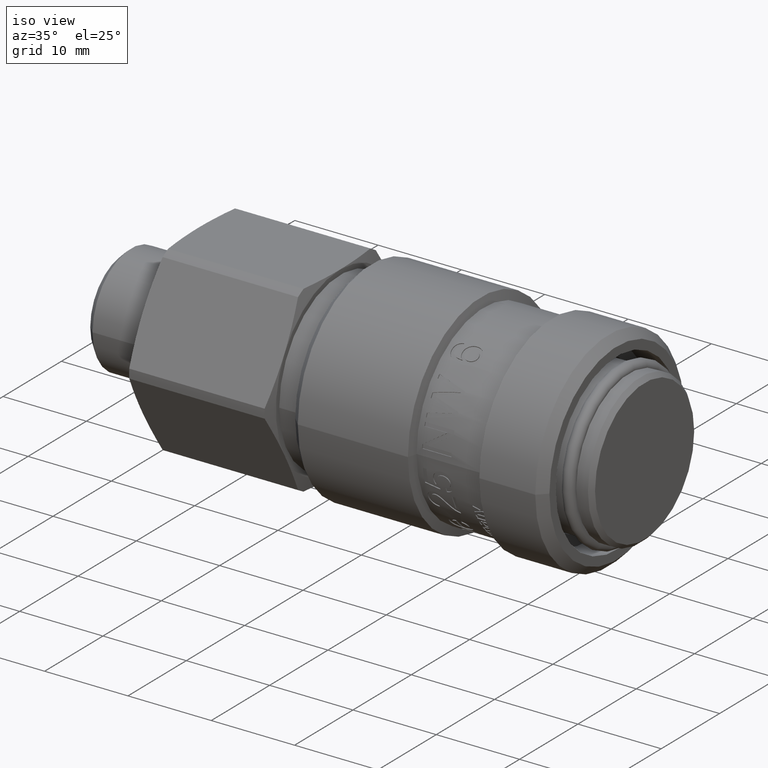
[diagram: clean part render]
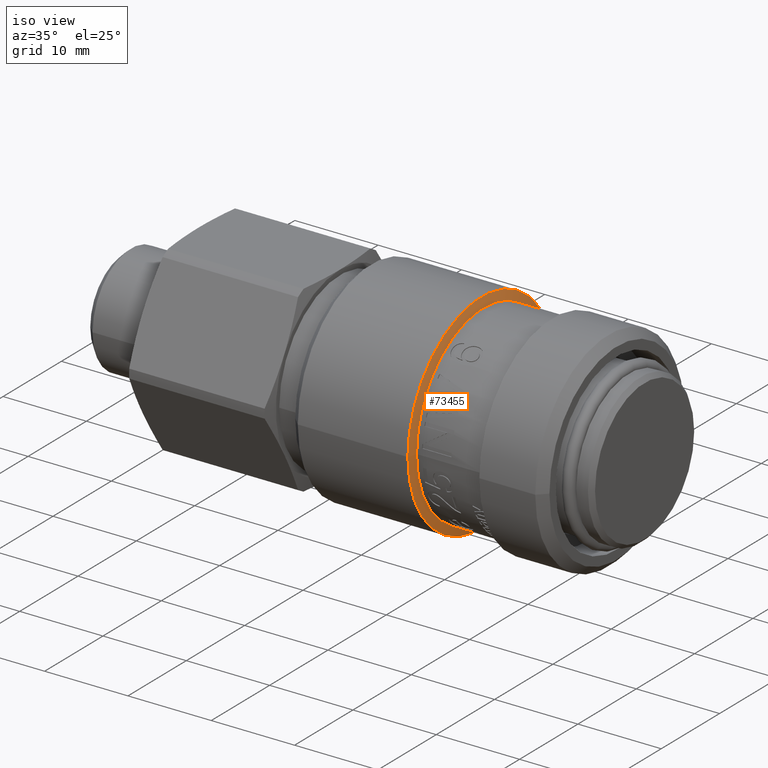
[diagram: same view with one face highlighted and labeled with its STEP entity id]
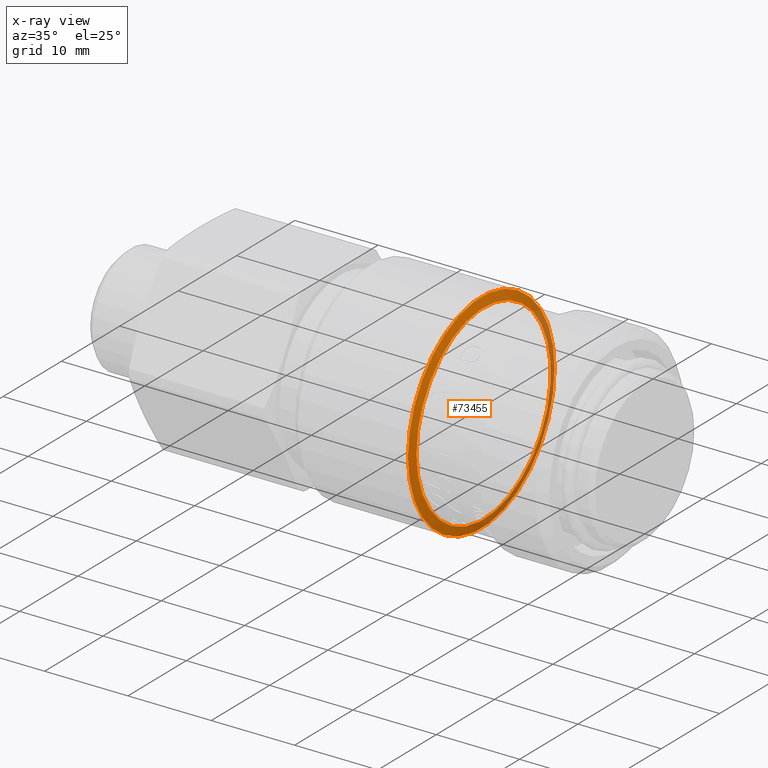
[diagram: x-ray of the same camera — body ghosted, the highlighted face saturated]
A machine part, iso view. The second image highlights one B-rep face of the part: STEP entity #73455.
The next image is the same camera in x-ray: the body ghosted, the highlighted face saturated — about 25% of this face is hidden behind the body in this view.
In plain terms, the highlighted conical surface has half-angle 75 deg.
Its self-contained STEP definition (entity closure, byte-faithful):
#39210=CARTESIAN_POINT('',(17.680999999999997,-11.500000000000000,0.0));
#39211=VERTEX_POINT('',#39210);
#39212=CARTESIAN_POINT('',(17.680999999999997,2.357603E-015,0.0));
#39213=DIRECTION('',(1.0,0.0,0.0));
#39214=DIRECTION('',(0.0,-1.0,0.0));
#39215=AXIS2_PLACEMENT_3D('',#39212,#39213,#39214);
#39216=CIRCLE('',#39215,11.500000000000002);
#39217=EDGE_CURVE('',#39211,#39211,#39216,.T.);
#73409=CARTESIAN_POINT('',(17.392954618136539,-12.574999999999996,0.0));
#73410=VERTEX_POINT('',#73409);
#73411=CARTESIAN_POINT('',(17.392954618136539,2.318507E-015,0.0));
#73412=DIRECTION('',(1.0,0.0,0.0));
#73413=DIRECTION('',(0.0,-1.0,0.0));
#73414=AXIS2_PLACEMENT_3D('',#73411,#73412,#73413);
#73415=CIRCLE('',#73414,12.574999999999999);
#73416=EDGE_CURVE('',#73410,#73410,#73415,.T.);
#73444=CARTESIAN_POINT('',(17.536977309068270,2.338055E-015,0.0));
#73445=DIRECTION('',(-1.0,-1.357271E-016,0.0));
#73446=DIRECTION('',(0.0,-1.0,0.0));
#73447=AXIS2_PLACEMENT_3D('',#73444,#73445,#73446);
#73448=CONICAL_SURFACE('',#73447,12.037500000000001,74.999999999999943);
#73449=ORIENTED_EDGE('',*,*,#39217,.F.);
#73450=EDGE_LOOP('',(#73449));
#73451=FACE_OUTER_BOUND('',#73450,.T.);
#73452=ORIENTED_EDGE('',*,*,#73416,.T.);
#73453=EDGE_LOOP('',(#73452));
#73454=FACE_BOUND('',#73453,.T.);
#73455=ADVANCED_FACE('',(#73451,#73454),#73448,.T.);